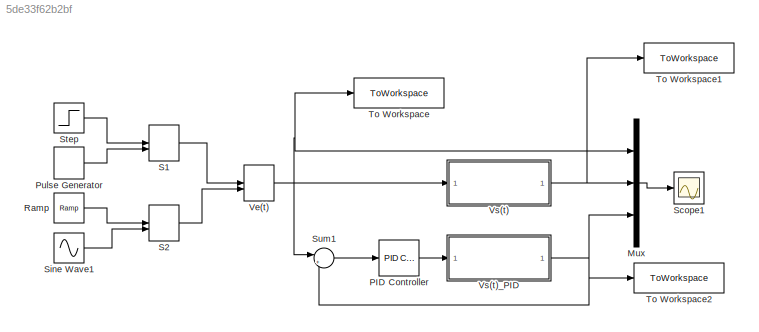
MODEL slx_5de33f62b2bf
KIND model
CONFIG AbsTol = auto
CONFIG EnableMultiTasking = off
CONFIG FixedStep = auto
CONFIG MaxStep = 1E-3
CONFIG MinStep = auto
CONFIG RelTol = 1e-3
CONFIG SampleTimeConstraint = Unconstrained
CONFIG SolverName = ode45
CONFIG StartTime = 0.0
CONFIG StopTime = 10
BLOCK [Mux] Mux
  DisplayOption = bar
  Inputs = 3
BLOCK [Reference] PID Controller  REF=slpidlib/PID Controller
  LibrarySourceBlock = simulink/Continuous/PID Controller
  SourceBlock = slpidlib/PID Controller
  SourceType = PID 1dof
BLOCK [DiscretePulseGenerator] Pulse Generator
  Period = 10
  PhaseDelay = 1
  PulseType = Time based
  PulseWidth = 10
BLOCK [Reference] Ramp  REF=simulink/Sources/Ramp
  SourceBlock = simulink/Sources/Ramp
  SourceType = Ramp
BLOCK [ManualSwitch] S1
  CurrentSetting = 0
BLOCK [ManualSwitch] S2
  CurrentSetting = 0
BLOCK [Scope] Scope1
  Floating = off
  NumInputPorts = 1
  ScopeSpecificationString = Simulink.scopes.TimeScopeBlockCfg('CurrentConfiguration', extmgr.ConfigurationSet(extmgr.Configuration('Core','General UI',true),extmgr.Configuration('Core','Source UI',true),extmgr.Configuration('Sources','WiredSimulink',true,'DataLoggingVariableName','ScopeData1'),extmgr.Configuration('Visuals','Time Domain',true,'SerializedDisplays',{struct('MinYLimReal','-1.25433','MaxYLimReal','1.25433','YLab...<+1468ch>
BLOCK [Sin] Sine Wave1
  Frequency = pi/2
  SampleTime = 0
BLOCK [Step] Step
  Time = 0
BLOCK [Sum] Sum1
  Inputs = |+-
BLOCK [ToWorkspace] To Workspace
  FixptAsFi = on
  MaxDataPoints = inf
  SampleTime = -1
  VariableName = Ve
BLOCK [ToWorkspace] To Workspace1
  FixptAsFi = on
  MaxDataPoints = inf
  SampleTime = -1
  VariableName = Vs
BLOCK [ToWorkspace] To Workspace2
  FixptAsFi = on
  MaxDataPoints = inf
  SampleTime = -1
  VariableName = VPID
BLOCK [ManualSwitch] Ve(t)
  CurrentSetting = 0
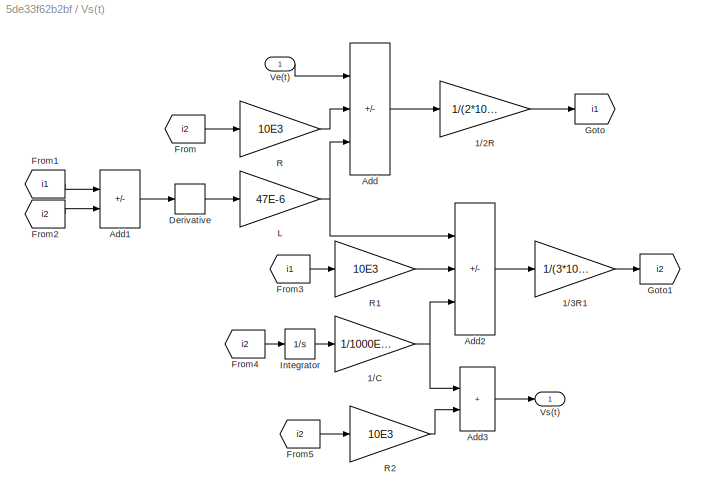
BLOCK [SubSystem] Vs(t)
BLOCK [Gain] Vs(t)/1//2R
  Gain = 1/(2*10E3)
BLOCK [Gain] Vs(t)/1//3R1
  Gain = 1/(3*10E3)
BLOCK [Gain] Vs(t)/1//C
  Gain = 1/1000E-6
BLOCK [Sum] Vs(t)/Add
  IconShape = rectangular
  Inputs = ++-
BLOCK [Sum] Vs(t)/Add1
  IconShape = rectangular
  Inputs = +-
BLOCK [Sum] Vs(t)/Add2
  IconShape = rectangular
  Inputs = ++-
BLOCK [Sum] Vs(t)/Add3
  IconShape = rectangular
BLOCK [Derivative] Vs(t)/Derivative
BLOCK [From] Vs(t)/From
  GotoTag = i2
BLOCK [From] Vs(t)/From1
  GotoTag = i1
BLOCK [From] Vs(t)/From2
  GotoTag = i2
BLOCK [From] Vs(t)/From3
  GotoTag = i1
BLOCK [From] Vs(t)/From4
  GotoTag = i2
BLOCK [From] Vs(t)/From5
  GotoTag = i2
BLOCK [Goto] Vs(t)/Goto
  GotoTag = i1
BLOCK [Goto] Vs(t)/Goto1
  GotoTag = i2
BLOCK [Integrator] Vs(t)/Integrator
BLOCK [Gain] Vs(t)/L
  Gain = 47E-6
BLOCK [Gain] Vs(t)/R
  Gain = 10E3
BLOCK [Gain] Vs(t)/R1
  Gain = 10E3
BLOCK [Gain] Vs(t)/R2
  Gain = 10E3
BLOCK [Inport] Vs(t)/Ve(t)
BLOCK [Outport] Vs(t)/Vs(t)
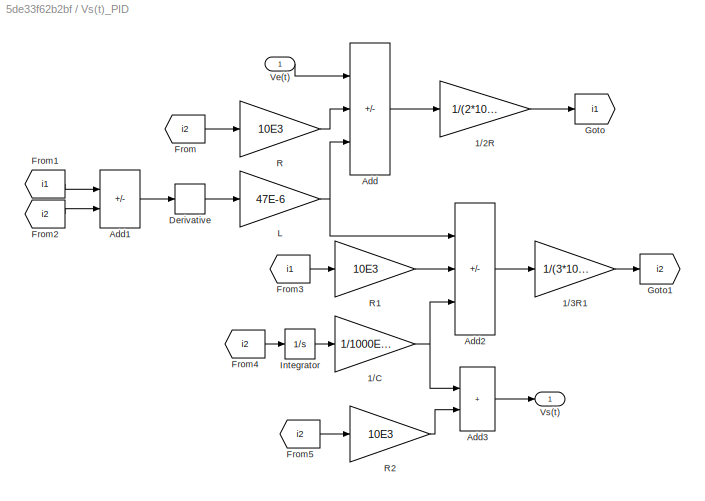
BLOCK [SubSystem] Vs(t)_PID
BLOCK [Gain] Vs(t)_PID/1//2R
  Gain = 1/(2*10E3)
BLOCK [Gain] Vs(t)_PID/1//3R1
  Gain = 1/(3*10E3)
BLOCK [Gain] Vs(t)_PID/1//C
  Gain = 1/1000E-6
BLOCK [Sum] Vs(t)_PID/Add
  IconShape = rectangular
  Inputs = ++-
BLOCK [Sum] Vs(t)_PID/Add1
  IconShape = rectangular
  Inputs = +-
BLOCK [Sum] Vs(t)_PID/Add2
  IconShape = rectangular
  Inputs = ++-
BLOCK [Sum] Vs(t)_PID/Add3
  IconShape = rectangular
BLOCK [Derivative] Vs(t)_PID/Derivative
BLOCK [From] Vs(t)_PID/From
  GotoTag = i2
BLOCK [From] Vs(t)_PID/From1
  GotoTag = i1
BLOCK [From] Vs(t)_PID/From2
  GotoTag = i2
BLOCK [From] Vs(t)_PID/From3
  GotoTag = i1
BLOCK [From] Vs(t)_PID/From4
  GotoTag = i2
BLOCK [From] Vs(t)_PID/From5
  GotoTag = i2
BLOCK [Goto] Vs(t)_PID/Goto
  GotoTag = i1
BLOCK [Goto] Vs(t)_PID/Goto1
  GotoTag = i2
BLOCK [Integrator] Vs(t)_PID/Integrator
BLOCK [Gain] Vs(t)_PID/L
  Gain = 47E-6
BLOCK [Gain] Vs(t)_PID/R
  Gain = 10E3
BLOCK [Gain] Vs(t)_PID/R1
  Gain = 10E3
BLOCK [Gain] Vs(t)_PID/R2
  Gain = 10E3
BLOCK [Inport] Vs(t)_PID/Ve(t)
BLOCK [Outport] Vs(t)_PID/Vs(t)
LINE Mux:1 -> Scope1:1
LINE PID Controller:1 -> Vs(t)_PID:1
LINE Pulse Generator:1 -> S1:2
LINE Ramp:1 -> S2:1
LINE S1:1 -> Ve(t):1
LINE S2:1 -> Ve(t):2
LINE Sine Wave1:1 -> S2:2
LINE Step:1 -> S1:1
LINE Sum1:1 -> PID Controller:1
NET Ve(t):1 -> Mux:1, Sum1:1, To Workspace:1, Vs(t):1
LINE Vs(t)/1//2R:1 -> Vs(t)/Goto:1
LINE Vs(t)/1//3R1:1 -> Vs(t)/Goto1:1
NET Vs(t)/1//C:1 -> Vs(t)/Add2:3, Vs(t)/Add3:1
LINE Vs(t)/Add1:1 -> Vs(t)/Derivative:1
LINE Vs(t)/Add2:1 -> Vs(t)/1//3R1:1
LINE Vs(t)/Add3:1 -> Vs(t)/Vs(t):1
LINE Vs(t)/Add:1 -> Vs(t)/1//2R:1
LINE Vs(t)/Derivative:1 -> Vs(t)/L:1
LINE Vs(t)/From1:1 -> Vs(t)/Add1:1
LINE Vs(t)/From2:1 -> Vs(t)/Add1:2
LINE Vs(t)/From3:1 -> Vs(t)/R1:1
LINE Vs(t)/From4:1 -> Vs(t)/Integrator:1
LINE Vs(t)/From5:1 -> Vs(t)/R2:1
LINE Vs(t)/From:1 -> Vs(t)/R:1
LINE Vs(t)/Integrator:1 -> Vs(t)/1//C:1
NET Vs(t)/L:1 -> Vs(t)/Add2:1, Vs(t)/Add:3
LINE Vs(t)/R1:1 -> Vs(t)/Add2:2
LINE Vs(t)/R2:1 -> Vs(t)/Add3:2
LINE Vs(t)/R:1 -> Vs(t)/Add:2
LINE Vs(t)/Ve(t):1 -> Vs(t)/Add:1
NET Vs(t):1 -> Mux:2, To Workspace1:1
LINE Vs(t)_PID/1//2R:1 -> Vs(t)_PID/Goto:1
LINE Vs(t)_PID/1//3R1:1 -> Vs(t)_PID/Goto1:1
NET Vs(t)_PID/1//C:1 -> Vs(t)_PID/Add2:3, Vs(t)_PID/Add3:1
LINE Vs(t)_PID/Add1:1 -> Vs(t)_PID/Derivative:1
LINE Vs(t)_PID/Add2:1 -> Vs(t)_PID/1//3R1:1
LINE Vs(t)_PID/Add3:1 -> Vs(t)_PID/Vs(t):1
LINE Vs(t)_PID/Add:1 -> Vs(t)_PID/1//2R:1
LINE Vs(t)_PID/Derivative:1 -> Vs(t)_PID/L:1
LINE Vs(t)_PID/From1:1 -> Vs(t)_PID/Add1:1
LINE Vs(t)_PID/From2:1 -> Vs(t)_PID/Add1:2
LINE Vs(t)_PID/From3:1 -> Vs(t)_PID/R1:1
LINE Vs(t)_PID/From4:1 -> Vs(t)_PID/Integrator:1
LINE Vs(t)_PID/From5:1 -> Vs(t)_PID/R2:1
LINE Vs(t)_PID/From:1 -> Vs(t)_PID/R:1
LINE Vs(t)_PID/Integrator:1 -> Vs(t)_PID/1//C:1
NET Vs(t)_PID/L:1 -> Vs(t)_PID/Add2:1, Vs(t)_PID/Add:3
LINE Vs(t)_PID/R1:1 -> Vs(t)_PID/Add2:2
LINE Vs(t)_PID/R2:1 -> Vs(t)_PID/Add3:2
LINE Vs(t)_PID/R:1 -> Vs(t)_PID/Add:2
LINE Vs(t)_PID/Ve(t):1 -> Vs(t)_PID/Add:1
NET Vs(t)_PID:1 -> Mux:3, Sum1:2, To Workspace2:1
note: NET lines group one-source signal fan-out (src -> all destinations, sorted); 1:1 wires keep LINE
